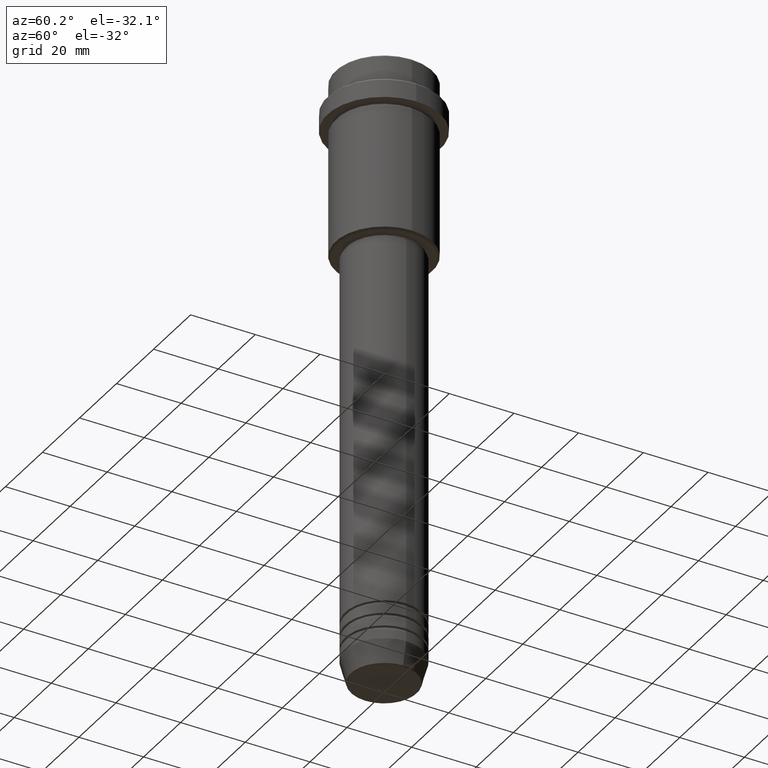
[diagram: clean part render]
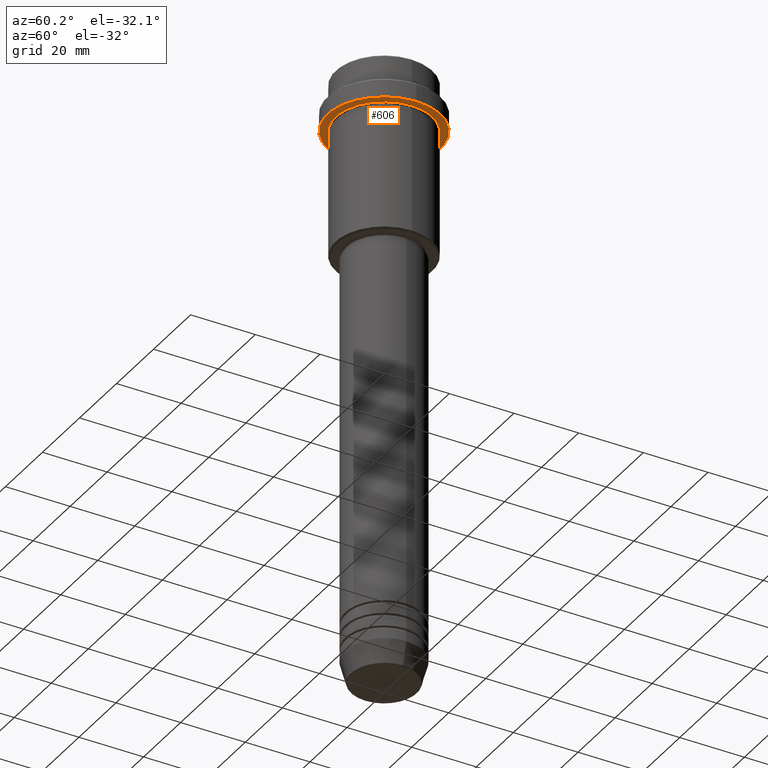
[diagram: same view with one face highlighted and labeled with its STEP entity id]
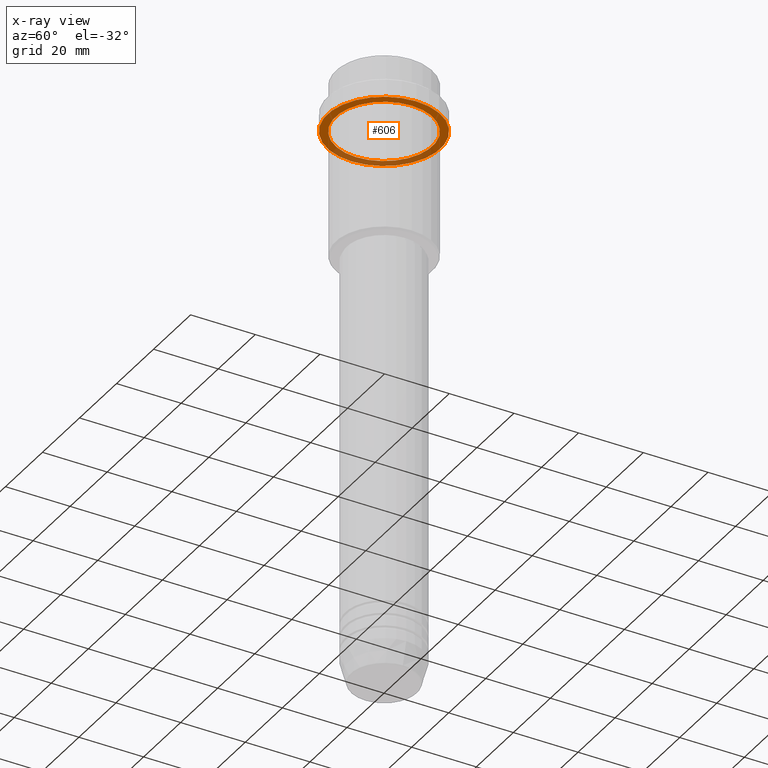
[diagram: x-ray of the same camera — body ghosted, the highlighted face saturated]
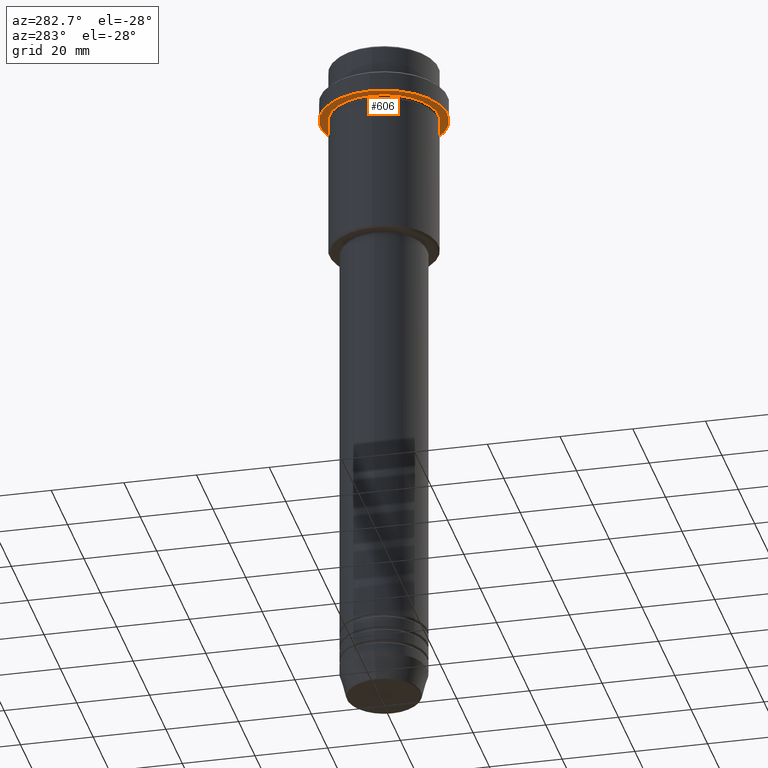
[diagram: same view with one face highlighted and labeled with its STEP entity id]
A machine part, auxiliary view. The second image highlights one B-rep face of the part: STEP entity #606.
The next image is the same camera in x-ray: the body ghosted, the highlighted face saturated — about 31% of this face is hidden behind the body in this view.
A second angle (auxiliary view) of the same face is appended — the face is thin or edge-on in the first view.
In plain terms, the highlighted planar face has unit normal (0, 0, -1).
Its self-contained STEP definition (entity closure, byte-faithful):
#9 = CARTESIAN_POINT ( 'NONE',  ( -17.50000000000000000, 2.143131898507868248E-15, -15.00000000000000178 ) ) ;
#67 = AXIS2_PLACEMENT_3D ( 'NONE', #735, #819, #408 ) ;
#82 = VERTEX_POINT ( 'NONE', #1208 ) ;
#226 = ORIENTED_EDGE ( 'NONE', *, *, #763, .F. ) ;
#229 = CARTESIAN_POINT ( 'NONE',  ( 0.000000000000000000, 0.000000000000000000, -15.00000000000000000 ) ) ;
#230 = CARTESIAN_POINT ( 'NONE',  ( -14.99999999999999645, 0.000000000000000000, -15.00000000000000000 ) ) ;
#238 = CIRCLE ( 'NONE', #1341, 17.50000000000000000 ) ;
#253 = CARTESIAN_POINT ( 'NONE',  ( 0.000000000000000000, 0.000000000000000000, -15.00000000000000000 ) ) ;
#255 = VERTEX_POINT ( 'NONE', #9 ) ;
#277 = AXIS2_PLACEMENT_3D ( 'NONE', #871, #439, #867 ) ;
#282 = PLANE ( 'NONE',  #67 ) ;
#300 = VERTEX_POINT ( 'NONE', #230 ) ;
#408 = DIRECTION ( 'NONE',  ( -1.000000000000000000, 0.000000000000000000, -0.000000000000000000 ) ) ;
#439 = DIRECTION ( 'NONE',  ( -0.000000000000000000, -0.000000000000000000, 1.000000000000000000 ) ) ;
#460 = CIRCLE ( 'NONE', #729, 14.99999999999999645 ) ;
#487 = FACE_BOUND ( 'NONE', #675, .T. ) ;
#551 = DIRECTION ( 'NONE',  ( -1.000000000000000000, 0.000000000000000000, 0.000000000000000000 ) ) ;
#606 = ADVANCED_FACE ( 'NONE', ( #487, #727 ), #282, .T. ) ;
#638 = EDGE_LOOP ( 'NONE', ( #1256, #226 ) ) ;
#675 = EDGE_LOOP ( 'NONE', ( #745, #704 ) ) ;
#676 = EDGE_CURVE ( 'NONE', #828, #300, #460, .T. ) ;
#704 = ORIENTED_EDGE ( 'NONE', *, *, #676, .T. ) ;
#727 = FACE_OUTER_BOUND ( 'NONE', #638, .T. ) ;
#729 = AXIS2_PLACEMENT_3D ( 'NONE', #229, #851, #551 ) ;
#735 = CARTESIAN_POINT ( 'NONE',  ( 0.000000000000000000, 17.50000000000000000, -15.00000000000000000 ) ) ;
#745 = ORIENTED_EDGE ( 'NONE', *, *, #1408, .T. ) ;
#763 = EDGE_CURVE ( 'NONE', #255, #82, #1278, .T. ) ;
#776 = DIRECTION ( 'NONE',  ( 1.000000000000000000, 0.000000000000000000, 0.000000000000000000 ) ) ;
#819 = DIRECTION ( 'NONE',  ( 0.000000000000000000, 0.000000000000000000, -1.000000000000000000 ) ) ;
#828 = VERTEX_POINT ( 'NONE', #1233 ) ;
#851 = DIRECTION ( 'NONE',  ( -0.000000000000000000, -0.000000000000000000, 1.000000000000000000 ) ) ;
#852 = EDGE_CURVE ( 'NONE', #82, #255, #238, .T. ) ;
#867 = DIRECTION ( 'NONE',  ( 1.000000000000000000, 0.000000000000000000, 0.000000000000000000 ) ) ;
#871 = CARTESIAN_POINT ( 'NONE',  ( 0.000000000000000000, 0.000000000000000000, -15.00000000000000178 ) ) ;
#884 = AXIS2_PLACEMENT_3D ( 'NONE', #253, #1381, #1041 ) ;
#988 = CARTESIAN_POINT ( 'NONE',  ( 0.000000000000000000, 0.000000000000000000, -15.00000000000000178 ) ) ;
#1041 = DIRECTION ( 'NONE',  ( -1.000000000000000000, 0.000000000000000000, 0.000000000000000000 ) ) ;
#1118 = DIRECTION ( 'NONE',  ( -0.000000000000000000, -0.000000000000000000, 1.000000000000000000 ) ) ;
#1208 = CARTESIAN_POINT ( 'NONE',  ( 17.50000000000000000, 0.000000000000000000, -15.00000000000000178 ) ) ;
#1233 = CARTESIAN_POINT ( 'NONE',  ( 14.99999999999999645, 1.836970198721029194E-15, -15.00000000000000000 ) ) ;
#1236 = CIRCLE ( 'NONE', #884, 14.99999999999999645 ) ;
#1256 = ORIENTED_EDGE ( 'NONE', *, *, #852, .F. ) ;
#1278 = CIRCLE ( 'NONE', #277, 17.50000000000000000 ) ;
#1341 = AXIS2_PLACEMENT_3D ( 'NONE', #988, #1118, #776 ) ;
#1381 = DIRECTION ( 'NONE',  ( -0.000000000000000000, -0.000000000000000000, 1.000000000000000000 ) ) ;
#1408 = EDGE_CURVE ( 'NONE', #300, #828, #1236, .T. ) ;